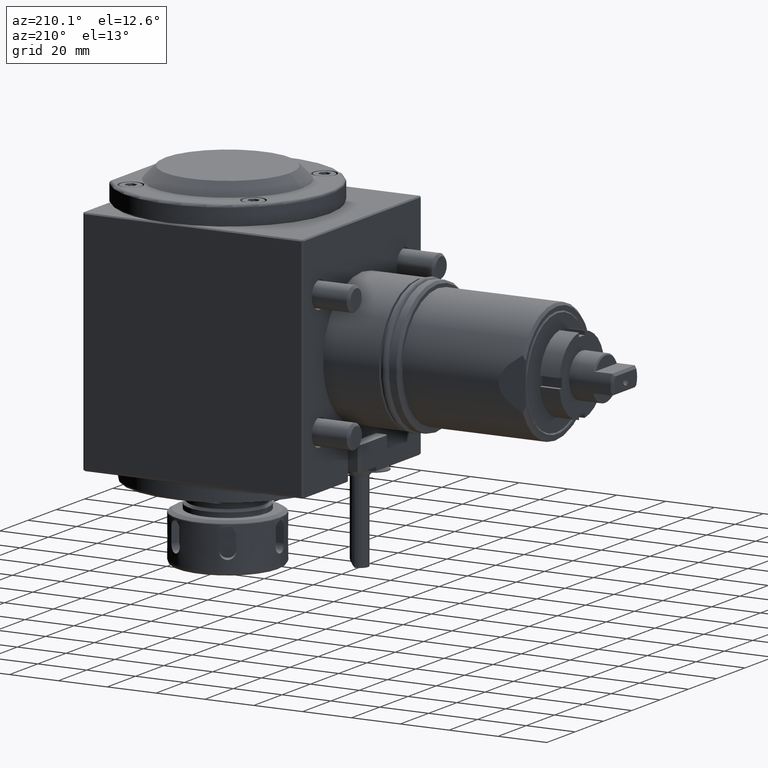
[diagram: clean part render]
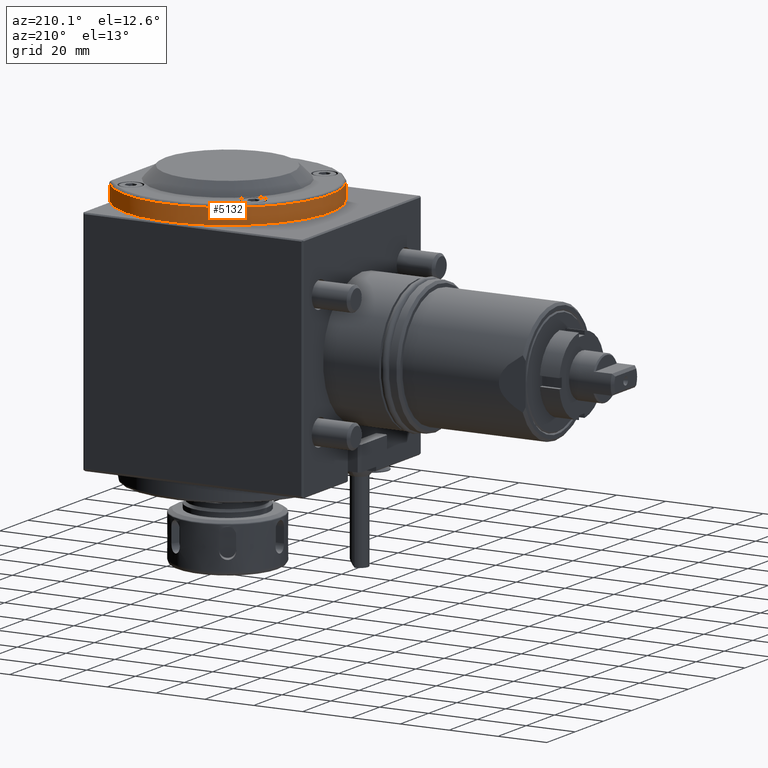
[diagram: same view with one face highlighted and labeled with its STEP entity id]
A machine part, auxiliary view. The second image highlights one B-rep face of the part: STEP entity #5132.
In plain terms, the highlighted cylindrical surface (partial cylindrical patch) has radius 42 mm, axis along (0, 0, 1).
Its self-contained STEP definition (entity closure, byte-faithful):
#42 = AXIS2_PLACEMENT_3D ( 'NONE', #2413, #6904, #5134 ) ;
#142 = VERTEX_POINT ( 'NONE', #763 ) ;
#396 = CYLINDRICAL_SURFACE ( 'NONE', #6285, 42.00000000000000000 ) ;
#583 = ORIENTED_EDGE ( 'NONE', *, *, #1013, .T. ) ;
#763 = CARTESIAN_POINT ( 'NONE',  ( 90.00000000001102762, -23.21637353250753577, 47.50000000000135714 ) ) ;
#1013 = EDGE_CURVE ( 'NONE', #1667, #142, #1801, .T. ) ;
#1061 = CARTESIAN_POINT ( 'NONE',  ( 90.00000000001000444, -23.21637353250790170, -100.1786799817245424 ) ) ;
#1174 = EDGE_CURVE ( 'NONE', #1667, #1279, #4148, .T. ) ;
#1279 = VERTEX_POINT ( 'NONE', #7172 ) ;
#1667 = VERTEX_POINT ( 'NONE', #10737 ) ;
#1801 = CIRCLE ( 'NONE', #4498, 42.00000000000000000 ) ;
#2413 = CARTESIAN_POINT ( 'NONE',  ( 55.00000000001107736, -1.954325785292341748E-11, 54.00000000000152056 ) ) ;
#3007 = CARTESIAN_POINT ( 'NONE',  ( 55.00000000001103473, -1.956378754672789845E-11, 47.50000000000152056 ) ) ;
#3314 = ORIENTED_EDGE ( 'NONE', *, *, #1174, .F. ) ;
#3979 = DIRECTION ( 'NONE',  ( -1.000000000000000000, -1.387778780780934888E-16, 6.938893903907228378E-15 ) ) ;
#4148 = LINE ( 'NONE', #6755, #8931 ) ;
#4253 = FACE_OUTER_BOUND ( 'NONE', #7753, .T. ) ;
#4498 = AXIS2_PLACEMENT_3D ( 'NONE', #3007, #4635, #3979 ) ;
#4635 = DIRECTION ( 'NONE',  ( 6.982962677686266711E-15, 3.158414431455586393E-15, 1.000000000000000000 ) ) ;
#4931 = DIRECTION ( 'NONE',  ( 6.982962677686266711E-15, 3.158414431455586393E-15, 1.000000000000000000 ) ) ;
#5076 = VERTEX_POINT ( 'NONE', #11326 ) ;
#5132 = ADVANCED_FACE ( 'NONE', ( #4253 ), #396, .T. ) ;
#5134 = DIRECTION ( 'NONE',  ( 0.000000000000000000, 1.000000000000000000, -3.139023432719936835E-15 ) ) ;
#6063 = DIRECTION ( 'NONE',  ( -1.000000000000000000, -1.387778780780934888E-16, 6.938893903907228378E-15 ) ) ;
#6285 = AXIS2_PLACEMENT_3D ( 'NONE', #10534, #8898, #6063 ) ;
#6755 = CARTESIAN_POINT ( 'NONE',  ( 90.00000000001000444, 23.21637353246780222, -100.1786799817247129 ) ) ;
#6904 = DIRECTION ( 'NONE',  ( -6.982962677686266711E-15, -3.158414431455586393E-15, -1.000000000000000000 ) ) ;
#7172 = CARTESIAN_POINT ( 'NONE',  ( 90.00000000001107026, 23.21637353246828894, 54.00000000000118661 ) ) ;
#7753 = EDGE_LOOP ( 'NONE', ( #9004, #9522, #3314, #583 ) ) ;
#8898 = DIRECTION ( 'NONE',  ( 6.982962677686266711E-15, 3.158414431455586393E-15, 1.000000000000000000 ) ) ;
#8918 = EDGE_CURVE ( 'NONE', #5076, #142, #9337, .T. ) ;
#8931 = VECTOR ( 'NONE', #4931, 1000.000000000000000 ) ;
#9004 = ORIENTED_EDGE ( 'NONE', *, *, #8918, .F. ) ;
#9075 = VECTOR ( 'NONE', #11658, 1000.000000000000000 ) ;
#9337 = LINE ( 'NONE', #1061, #9075 ) ;
#9522 = ORIENTED_EDGE ( 'NONE', *, *, #9566, .T. ) ;
#9566 = EDGE_CURVE ( 'NONE', #5076, #1279, #9855, .T. ) ;
#9855 = CIRCLE ( 'NONE', #42, 42.00000000000000000 ) ;
#10534 = CARTESIAN_POINT ( 'NONE',  ( 55.00000000000999734, -2.003021802080048150E-11, -100.1786799817243860 ) ) ;
#10737 = CARTESIAN_POINT ( 'NONE',  ( 90.00000000001102762, 23.21637353246841684, 47.50000000000118661 ) ) ;
#11326 = CARTESIAN_POINT ( 'NONE',  ( 90.00000000001107026, -23.21637353250741498, 54.00000000000135003 ) ) ;
#11658 = DIRECTION ( 'NONE',  ( -6.982962677686266711E-15, -3.158414431455586393E-15, -1.000000000000000000 ) ) ;